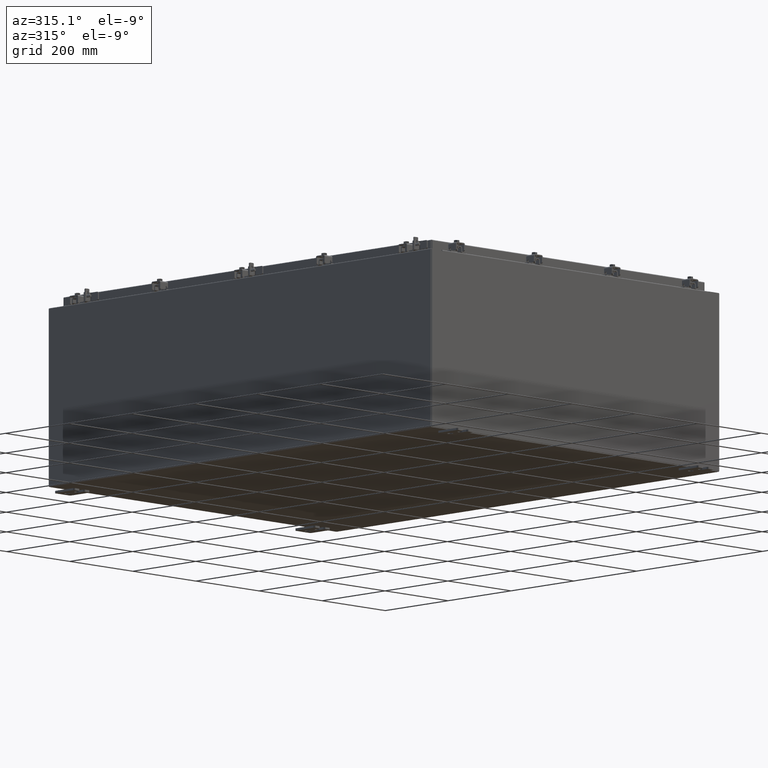
[diagram: clean part render]
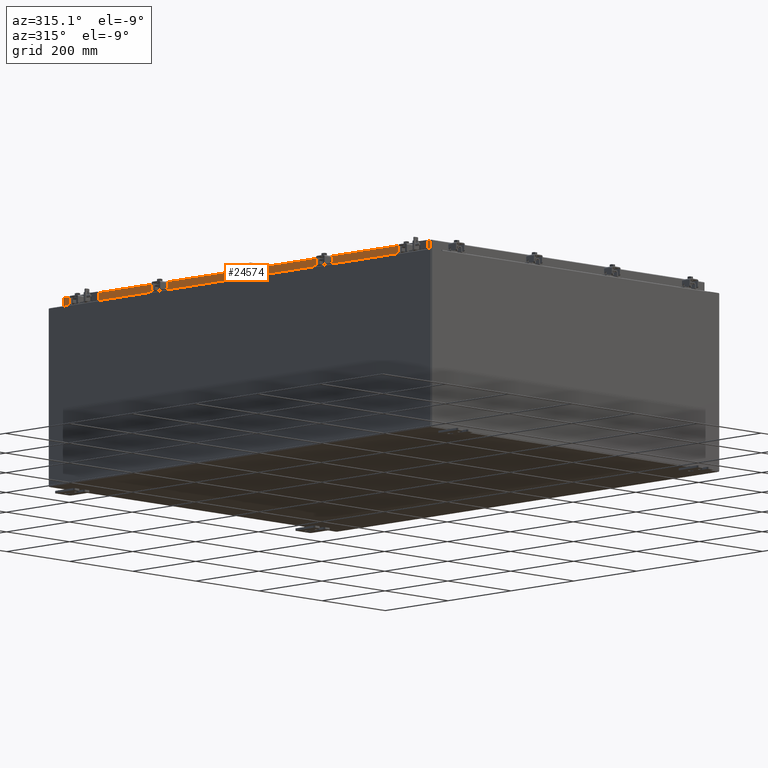
[diagram: same view with one face highlighted and labeled with its STEP entity id]
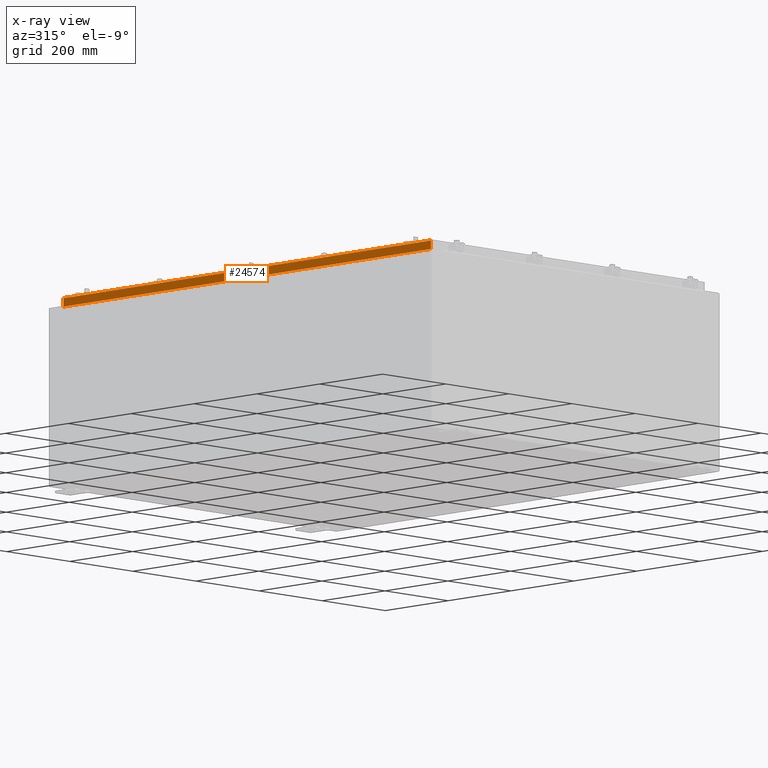
[diagram: x-ray of the same camera — body ghosted, the highlighted face saturated]
A machine part, auxiliary view. The second image highlights one B-rep face of the part: STEP entity #24574.
The next image is the same camera in x-ray: the body ghosted, the highlighted face saturated — about 0% of this face is hidden behind the body in this view.
In plain terms, the highlighted planar face has unit normal (1, 0, -0).
Its self-contained STEP definition (entity closure, byte-faithful):
#357 = CARTESIAN_POINT ( 'NONE',  ( -17.07800000000000300, -23.09399999999999400, -0.8499999999999999800 ) ) ;
#1160 = CARTESIAN_POINT ( 'NONE',  ( -17.07799999999998900, -22.25515786437625500, -0.8500000000000020900 ) ) ;
#1170 = ORIENTED_EDGE ( 'NONE', *, *, #25766, .F. ) ;
#1743 = CARTESIAN_POINT ( 'NONE',  ( -17.07799999999998900, 22.25515786437623700, -0.8500000000000020900 ) ) ;
#2528 = LINE ( 'NONE', #14770, #24268 ) ;
#2632 = CARTESIAN_POINT ( 'NONE',  ( -17.07799999999999900, 0.0000000000000000000, 4.808052468849102900E-014 ) ) ;
#3183 = EDGE_CURVE ( 'NONE', #13093, #9583, #22346, .T. ) ;
#3936 = ORIENTED_EDGE ( 'NONE', *, *, #4245, .F. ) ;
#4195 = CARTESIAN_POINT ( 'NONE',  ( -17.07799999999999900, -23.09399999999999400, -0.08770000000000026400 ) ) ;
#4245 = EDGE_CURVE ( 'NONE', #9583, #8749, #2528, .T. ) ;
#4389 = ORIENTED_EDGE ( 'NONE', *, *, #15520, .F. ) ;
#4755 = DIRECTION ( 'NONE',  ( 1.000000000000000000, 3.417889107165661600E-031, -2.818880942772360100E-015 ) ) ;
#5256 = DIRECTION ( 'NONE',  ( -2.818880942772360100E-015, 6.982962677686265900E-015, -1.000000000000000000 ) ) ;
#5331 = DIRECTION ( 'NONE',  ( -4.379057701015054300E-047, 1.000000000000000000, 1.212498568245375500E-016 ) ) ;
#6200 = VECTOR ( 'NONE', #23183, 39.37007874015748100 ) ;
#6633 = CARTESIAN_POINT ( 'NONE',  ( -17.07800000000000300, -23.00515786437625800, -0.8499999999999999800 ) ) ;
#7356 = CARTESIAN_POINT ( 'NONE',  ( -17.07799999999999900, 23.00515786437626200, -0.08770000000000026400 ) ) ;
#7382 = ORIENTED_EDGE ( 'NONE', *, *, #3183, .F. ) ;
#7771 = VERTEX_POINT ( 'NONE', #1743 ) ;
#8749 = VERTEX_POINT ( 'NONE', #6633 ) ;
#9583 = VERTEX_POINT ( 'NONE', #14792 ) ;
#10834 = EDGE_CURVE ( 'NONE', #8749, #23630, #25339, .T. ) ;
#11613 = ORIENTED_EDGE ( 'NONE', *, *, #10834, .F. ) ;
#11985 = FACE_OUTER_BOUND ( 'NONE', #21286, .T. ) ;
#13054 = EDGE_CURVE ( 'NONE', #13093, #27073, #24097, .T. ) ;
#13093 = VERTEX_POINT ( 'NONE', #7356 ) ;
#14608 = CARTESIAN_POINT ( 'NONE',  ( -17.07799999999998900, -22.25515786437626200, -0.8500000000000020900 ) ) ;
#14770 = CARTESIAN_POINT ( 'NONE',  ( -17.07799999999999900, -23.00515786437626200, -0.07470000000000015500 ) ) ;
#14792 = CARTESIAN_POINT ( 'NONE',  ( -17.07799999999999900, -23.00515786437626200, -0.08770000000000026400 ) ) ;
#15249 = PLANE ( 'NONE',  #26064 ) ;
#15520 = EDGE_CURVE ( 'NONE', #23630, #7771, #18724, .T. ) ;
#16811 = DIRECTION ( 'NONE',  ( -2.818880942772360100E-015, 6.982962677686265900E-015, -1.000000000000000000 ) ) ;
#17227 = LINE ( 'NONE', #17966, #23483 ) ;
#17231 = DIRECTION ( 'NONE',  ( -4.379057701015054300E-047, 1.000000000000000000, 1.212498568245375500E-016 ) ) ;
#17877 = CARTESIAN_POINT ( 'NONE',  ( -17.07799999999999900, 23.00515786437626200, 2.076204475184840000E-013 ) ) ;
#17966 = CARTESIAN_POINT ( 'NONE',  ( -17.07800000000000300, -23.09399999999999400, -0.8499999999999999800 ) ) ;
#18724 = LINE ( 'NONE', #1160, #23665 ) ;
#19500 = DIRECTION ( 'NONE',  ( -2.818880942772360100E-015, 0.0000000000000000000, -1.000000000000000000 ) ) ;
#19666 = CARTESIAN_POINT ( 'NONE',  ( -17.07800000000000300, 23.00515786437626200, -0.8499999999999934300 ) ) ;
#21100 = ORIENTED_EDGE ( 'NONE', *, *, #13054, .T. ) ;
#21286 = EDGE_LOOP ( 'NONE', ( #7382, #21100, #1170, #4389, #11613, #3936 ) ) ;
#22346 = LINE ( 'NONE', #4195, #6200 ) ;
#23183 = DIRECTION ( 'NONE',  ( 3.417889107165661600E-031, -1.000000000000000000, -9.316371385484559400E-046 ) ) ;
#23483 = VECTOR ( 'NONE', #5331, 39.37007874015748100 ) ;
#23630 = VERTEX_POINT ( 'NONE', #14608 ) ;
#23665 = VECTOR ( 'NONE', #24280, 39.37007874015748100 ) ;
#24097 = LINE ( 'NONE', #17877, #25406 ) ;
#24268 = VECTOR ( 'NONE', #16811, 39.37007874015748100 ) ;
#24280 = DIRECTION ( 'NONE',  ( -0.0000000000000000000, 1.000000000000000000, -0.0000000000000000000 ) ) ;
#24574 = ADVANCED_FACE ( 'NONE', ( #11985 ), #15249, .F. ) ;
#24669 = VECTOR ( 'NONE', #17231, 39.37007874015748100 ) ;
#25339 = LINE ( 'NONE', #357, #24669 ) ;
#25406 = VECTOR ( 'NONE', #5256, 39.37007874015748100 ) ;
#25766 = EDGE_CURVE ( 'NONE', #7771, #27073, #17227, .T. ) ;
#26064 = AXIS2_PLACEMENT_3D ( 'NONE', #2632, #4755, #19500 ) ;
#27073 = VERTEX_POINT ( 'NONE', #19666 ) ;